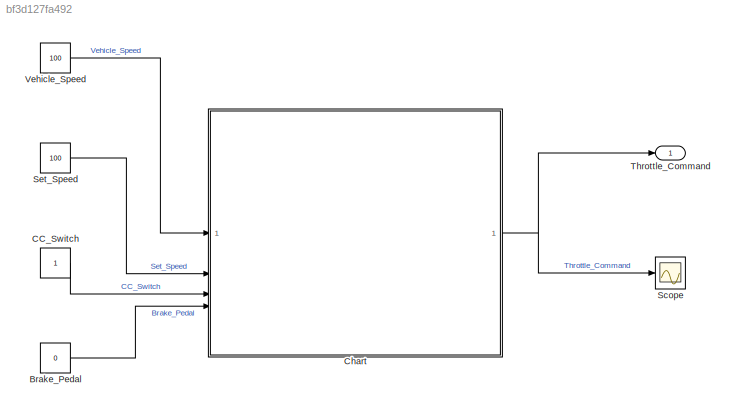
MODEL slx_bf3d127fa492
KIND model
CONFIG AbsTol = auto
CONFIG EnableMultiTasking = off
CONFIG FixedStep = auto
CONFIG MaxStep = auto
CONFIG MinStep = auto
CONFIG RelTol = 1e-3
CONFIG SampleTimeConstraint = Unconstrained
CONFIG SolverName = VariableStepAuto
CONFIG StartTime = 0.0
CONFIG StopTime = 10.0
BLOCK [Constant] Brake_Pedal
  Value = 0
BLOCK [Constant] CC_Switch
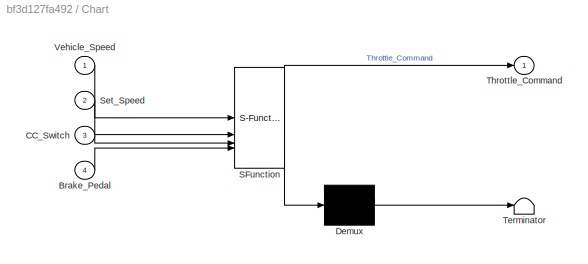
BLOCK [SubSystem] Chart
  ErrorFcn = Stateflow.Translate.translate
  PermitHierarchicalResolution = ExplicitOnly
  SFBlockType = Chart
  TreatAsAtomicUnit = on
BLOCK [Demux] Chart/ Demux 
  Outputs = 1
BLOCK [S-Function] Chart/ SFunction 
  EnableBusSupport = off
  FunctionName = sf_sfun
  PortCounts = [4 2]
  SFcnIsStateOwnerBlock = off
  SFunctionDeploymentMode = off
  Tag = Stateflow S-Function 3
BLOCK [Terminator] Chart/ Terminator 
BLOCK [Inport] Chart/Brake_Pedal
  Port = 4
BLOCK [Inport] Chart/CC_Switch
  Port = 3
BLOCK [Inport] Chart/Set_Speed
  Port = 2
BLOCK [Outport] Chart/Throttle_Command
BLOCK [Inport] Chart/Vehicle_Speed
BLOCK [Scope] Scope
  ActiveDisplayYMaximum = 1.125
  ActiveDisplayYMinimum = -0.12499999999999997
  Floating = off
  GraphicalSettings = {"Style":{"BackgroundColor":[0.12941176470588237,0.12941176470588237,0.12941176470588237],"AxesColor":[0.07058823529411765,0.07058823529411765,0.07058823529411765],"LabelsColor":[0.8509803921568627,0.8509803921568627,0.8509803921568627],"PreserveColors":false,"Visible":[true],"LineStyle":["-"],"LineWidth":[1.5],"BarWidth":[0.9],"LineColor":["auto"],"LineFaceAlpha":[1],"LineEdgeAlpha":[1],"Marker":...<+1966ch>
  MultipleDisplayCache = [{"MaxYLimMag":1.125,"MaxYLimReal":1.125,"MinYLimMag":0,"MinYLimReal":-0.12499999999999997,"PlotAsMagnitudePhase":false,"ShowGrid":true,"ShowLegend":false,"Title":"%<SignalLabel>","YLabel":""}]
  NumInputPorts = 1
  ScopeFrameLocation = window
  Visible = on
  WasSavedAsWebScope = on
  WindowPosition = [815.000000,563.000000,303.000000,218.000000,]
BLOCK [Constant] Set_Speed
  Value = 100
BLOCK [Outport] Throttle_Command
BLOCK [Constant] Vehicle_Speed
  Value = 100
LINE Brake_Pedal:1 -> Chart:4
LINE CC_Switch:1 -> Chart:3
NET Chart:1 -> Scope:1, Throttle_Command:1
LINE Set_Speed:1 -> Chart:2
LINE Vehicle_Speed:1 -> Chart:1
note: NET lines group one-source signal fan-out (src -> all destinations, sorted); 1:1 wires keep LINE
CHART Chart states=3 transitions=7
  STATE_LABEL 'CC_OFF\n\nentry: Throttle_Command = 0;'
  STATE_LABEL 'CC_STANDBY\n\nentry: Throttle_Command = 0;'
  STATE_LABEL 'CC_ACTIVE\n\nentry: Throttle_Command = 1;'
CHART  states=0 transitions=0
